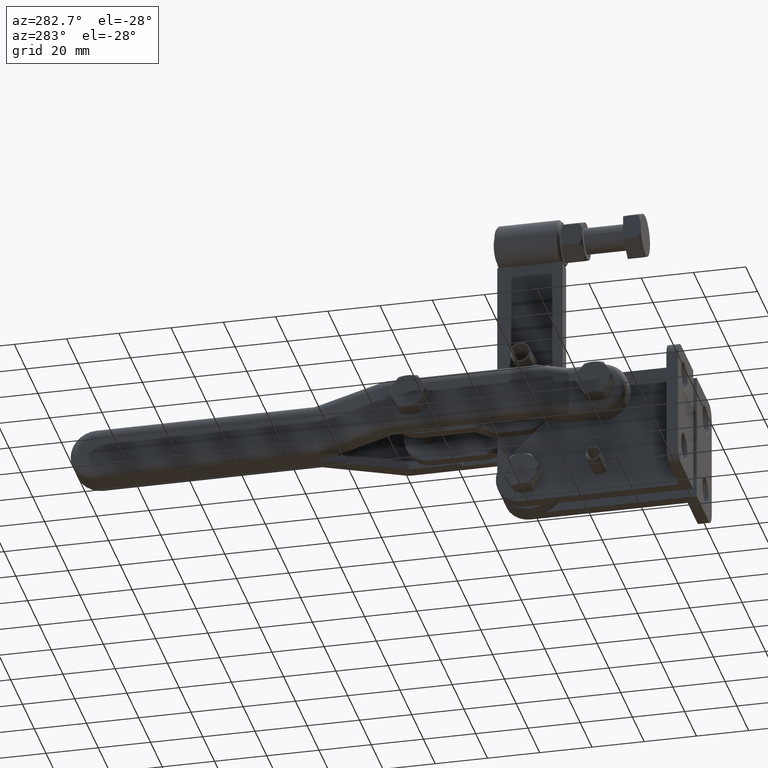
[diagram: clean part render]
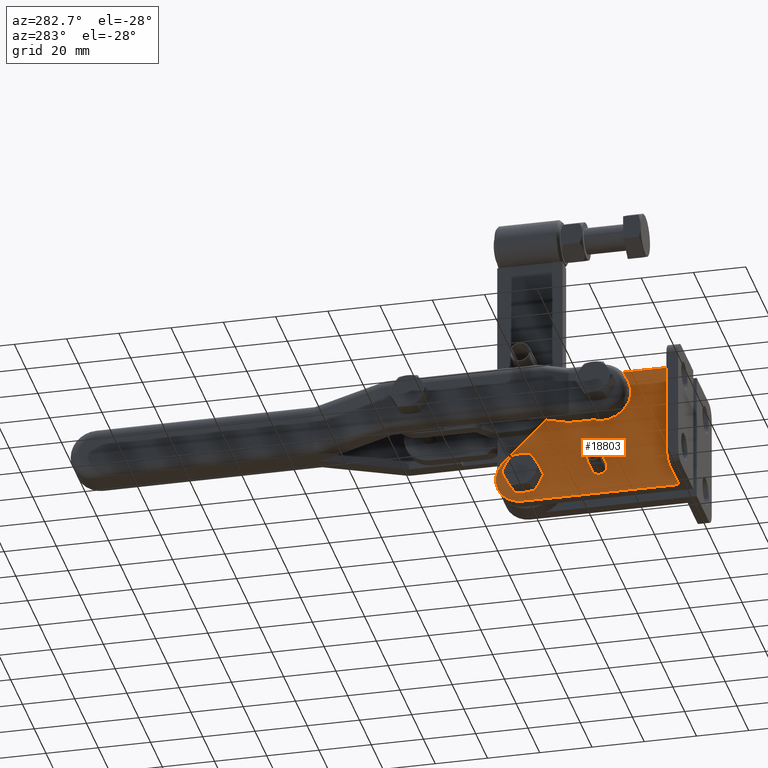
[diagram: same view with one face highlighted and labeled with its STEP entity id]
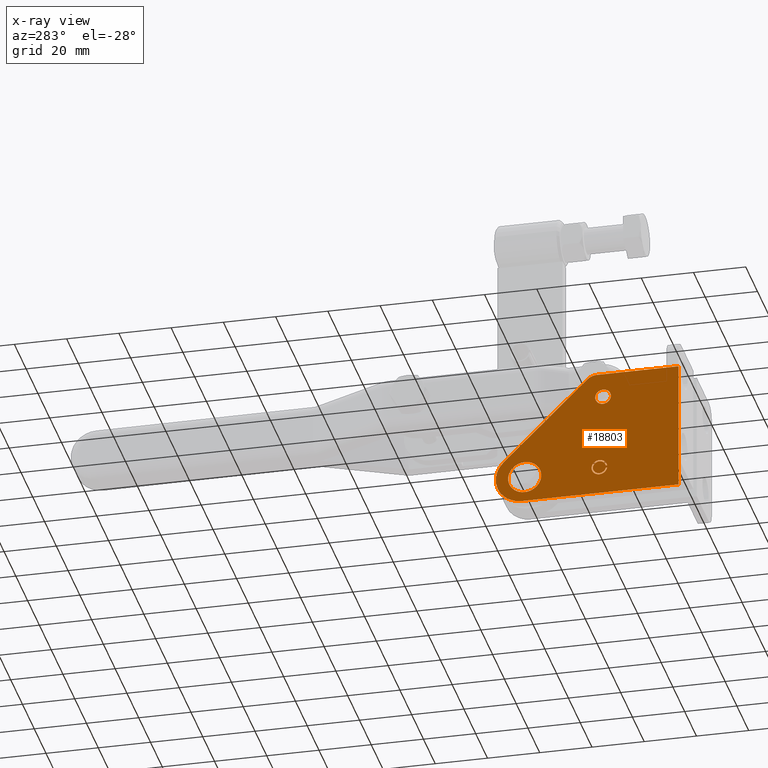
[diagram: x-ray of the same camera — body ghosted, the highlighted face saturated]
A machine part, auxiliary view. The second image highlights one B-rep face of the part: STEP entity #18803.
The next image is the same camera in x-ray: the body ghosted, the highlighted face saturated — about 0% of this face is hidden behind the body in this view.
In plain terms, the highlighted planar face has unit normal (-1, 0, -0).
Its self-contained STEP definition (entity closure, byte-faithful):
#27 = EDGE_CURVE ( 'NONE', #4426, #3462, #16315, .T. ) ;
#114 = DIRECTION ( 'NONE',  ( 0.0000000000000000000, 0.0000000000000000000, 1.000000000000000000 ) ) ;
#133 = VERTEX_POINT ( 'NONE', #11778 ) ;
#162 = DIRECTION ( 'NONE',  ( -1.000000000000000000, 0.0000000000000000000, 0.0000000000000000000 ) ) ;
#234 = ORIENTED_EDGE ( 'NONE', *, *, #1494, .F. ) ;
#336 = ORIENTED_EDGE ( 'NONE', *, *, #16577, .F. ) ;
#428 = CARTESIAN_POINT ( 'NONE',  ( -7.500000000000004400, 3.435959846941493900E-015, -38.63913390498800700 ) ) ;
#443 = AXIS2_PLACEMENT_3D ( 'NONE', #13259, #3208, #14996 ) ;
#555 = EDGE_CURVE ( 'NONE', #13127, #133, #1192, .T. ) ;
#689 = VERTEX_POINT ( 'NONE', #19087 ) ;
#886 = EDGE_LOOP ( 'NONE', ( #16013, #7325, #15750, #12714, #14782, #2946 ) ) ;
#953 = AXIS2_PLACEMENT_3D ( 'NONE', #20270, #10170, #114 ) ;
#1065 = EDGE_CURVE ( 'NONE', #1641, #3279, #7149, .T. ) ;
#1192 = CIRCLE ( 'NONE', #9022, 6.350000000000001400 ) ;
#1204 = VECTOR ( 'NONE', #12216, 1000.000000000000000 ) ;
#1254 = CARTESIAN_POINT ( 'NONE',  ( -7.500000000000015100, 63.50000000000000000, -40.00000000000000000 ) ) ;
#1297 = CIRCLE ( 'NONE', #20696, 4.999999999999999100 ) ;
#1311 = DIRECTION ( 'NONE',  ( 0.0000000000000000000, 0.0000000000000000000, -1.000000000000000000 ) ) ;
#1406 = DIRECTION ( 'NONE',  ( 0.0000000000000000000, 0.0000000000000000000, 1.000000000000000000 ) ) ;
#1494 = EDGE_CURVE ( 'NONE', #2815, #13127, #19274, .T. ) ;
#1627 = CARTESIAN_POINT ( 'NONE',  ( -7.500000000000002700, 71.59174510802633100, -32.85048950316250000 ) ) ;
#1641 = VERTEX_POINT ( 'NONE', #12681 ) ;
#1806 = CARTESIAN_POINT ( 'NONE',  ( -7.500000000000004400, 3.133521650926662100E-015, -39.63913390498800700 ) ) ;
#1848 = VECTOR ( 'NONE', #12132, 1000.000000000000000 ) ;
#1903 = CARTESIAN_POINT ( 'NONE',  ( -7.500000000000004400, 4.599999999999999600, -50.00000000000000700 ) ) ;
#2013 = CARTESIAN_POINT ( 'NONE',  ( -7.500000000000003600, 34.89999999999975700, -39.13913390498801400 ) ) ;
#2027 = EDGE_CURVE ( 'NONE', #5045, #1641, #5280, .T. ) ;
#2041 = DIRECTION ( 'NONE',  ( 0.0000000000000000000, 0.0000000000000000000, 1.000000000000000000 ) ) ;
#2107 = EDGE_CURVE ( 'NONE', #12809, #11472, #3178, .T. ) ;
#2113 = ORIENTED_EDGE ( 'NONE', *, *, #27, .F. ) ;
#2188 = LINE ( 'NONE', #3251, #2717 ) ;
#2226 = VERTEX_POINT ( 'NONE', #6256 ) ;
#2247 = CARTESIAN_POINT ( 'NONE',  ( -7.500000000000003600, 34.89999999999975700, -39.13913390498801400 ) ) ;
#2717 = VECTOR ( 'NONE', #18349, 1000.000000000000000 ) ;
#2815 = VERTEX_POINT ( 'NONE', #14872 ) ;
#2946 = ORIENTED_EDGE ( 'NONE', *, *, #2027, .T. ) ;
#2985 = VERTEX_POINT ( 'NONE', #5346 ) ;
#3134 = PLANE ( 'NONE',  #443 ) ;
#3178 = CIRCLE ( 'NONE', #10821, 3.000000000000000000 ) ;
#3208 = DIRECTION ( 'NONE',  ( -1.000000000000000000, 0.0000000000000000000, -1.605624300050768600E-017 ) ) ;
#3251 = CARTESIAN_POINT ( 'NONE',  ( -7.500000000000004400, 74.50000000000000000, -50.00000000000000700 ) ) ;
#3274 = EDGE_CURVE ( 'NONE', #4426, #12543, #7541, .T. ) ;
#3279 = VERTEX_POINT ( 'NONE', #11967 ) ;
#3304 = DIRECTION ( 'NONE',  ( 1.000000000000000000, -0.0000000000000000000, 1.605624300050768600E-017 ) ) ;
#3348 = AXIS2_PLACEMENT_3D ( 'NONE', #21455, #11367, #1311 ) ;
#3462 = VERTEX_POINT ( 'NONE', #16003 ) ;
#3499 = ORIENTED_EDGE ( 'NONE', *, *, #8879, .T. ) ;
#3709 = CARTESIAN_POINT ( 'NONE',  ( -7.500000000000005300, 35.96153216463069000, -5.000000000000006200 ) ) ;
#3821 = CIRCLE ( 'NONE', #14406, 3.000000000000002700 ) ;
#3945 = DIRECTION ( 'NONE',  ( 0.0000000000000000000, 0.0000000000000000000, 1.000000000000000000 ) ) ;
#4135 = DIRECTION ( 'NONE',  ( 0.0000000000000000000, 0.0000000000000000000, 1.000000000000000000 ) ) ;
#4340 = AXIS2_PLACEMENT_3D ( 'NONE', #13344, #3304, #15089 ) ;
#4426 = VERTEX_POINT ( 'NONE', #17809 ) ;
#4652 = CIRCLE ( 'NONE', #4340, 3.000000000000002700 ) ;
#5007 = VECTOR ( 'NONE', #15656, 1000.000000000000000 ) ;
#5045 = VERTEX_POINT ( 'NONE', #13435 ) ;
#5217 = DIRECTION ( 'NONE',  ( 0.0000000000000000000, 0.0000000000000000000, 1.000000000000000000 ) ) ;
#5280 = CIRCLE ( 'NONE', #19166, 2.500000000000002200 ) ;
#5346 = CARTESIAN_POINT ( 'NONE',  ( -7.500000000000004400, 64.60000000000000900, -50.00000000000000700 ) ) ;
#5350 = DIRECTION ( 'NONE',  ( 1.000000000000000000, 0.0000000000000000000, 1.605624300050768600E-017 ) ) ;
#5363 = CARTESIAN_POINT ( 'NONE',  ( -7.500000000000004400, 0.0000000000000000000, -50.00000000000000700 ) ) ;
#5387 = DIRECTION ( 'NONE',  ( -1.000000000000000000, 0.0000000000000000000, -1.605624300050768600E-017 ) ) ;
#5396 = DIRECTION ( 'NONE',  ( 0.0000000000000000000, 0.0000000000000000000, -1.000000000000000000 ) ) ;
#5665 = AXIS2_PLACEMENT_3D ( 'NONE', #2247, #14027, #3945 ) ;
#5739 = VECTOR ( 'NONE', #9906, 1000.000000000000000 ) ;
#5809 = CARTESIAN_POINT ( 'NONE',  ( -7.500000000000006200, 43.56988738965519300, -5.446978912207396400 ) ) ;
#5842 = CARTESIAN_POINT ( 'NONE',  ( -7.500000000000004400, 68.99926131403117300, -43.17499999999999700 ) ) ;
#5996 = DIRECTION ( 'NONE',  ( -1.000000000000000000, 0.0000000000000000000, 0.0000000000000000000 ) ) ;
#6051 = EDGE_CURVE ( 'NONE', #11472, #12809, #12087, .T. ) ;
#6256 = CARTESIAN_POINT ( 'NONE',  ( -7.500000000000005300, 74.50000000000000000, -38.58932640203338600 ) ) ;
#6508 = ORIENTED_EDGE ( 'NONE', *, *, #10453, .F. ) ;
#6589 = DIRECTION ( 'NONE',  ( -1.000000000000000000, 0.0000000000000000000, 0.0000000000000000000 ) ) ;
#6810 = LINE ( 'NONE', #5363, #1848 ) ;
#7149 = LINE ( 'NONE', #1806, #16141 ) ;
#7325 = ORIENTED_EDGE ( 'NONE', *, *, #12246, .T. ) ;
#7485 = DIRECTION ( 'NONE',  ( -1.122611584520817600E-017, -0.7149510496837513400, 0.6991745108026337100 ) ) ;
#7541 = CIRCLE ( 'NONE', #18775, 6.350000000000001400 ) ;
#7623 = EDGE_CURVE ( 'NONE', #133, #12543, #11553, .T. ) ;
#8022 = VERTEX_POINT ( 'NONE', #17560 ) ;
#8155 = EDGE_CURVE ( 'NONE', #12314, #8605, #14721, .T. ) ;
#8189 = CARTESIAN_POINT ( 'NONE',  ( -7.500000000000004400, 4.599999999999999600, -50.00000000000000700 ) ) ;
#8451 = DIRECTION ( 'NONE',  ( 0.0000000000000000000, 0.0000000000000000000, 1.000000000000000000 ) ) ;
#8579 = CARTESIAN_POINT ( 'NONE',  ( -7.500000000000015100, 63.50000000000000000, -40.00000000000000000 ) ) ;
#8605 = VERTEX_POINT ( 'NONE', #18058 ) ;
#8694 = DIRECTION ( 'NONE',  ( 1.000000000000000000, 0.0000000000000000000, 0.0000000000000000000 ) ) ;
#8817 = CARTESIAN_POINT ( 'NONE',  ( -7.500000000000005300, 0.0000000000000000000, -4.336808689942017700E-015 ) ) ;
#8879 = EDGE_CURVE ( 'NONE', #8605, #8022, #14635, .T. ) ;
#8953 = FACE_BOUND ( 'NONE', #886, .T. ) ;
#9004 = EDGE_CURVE ( 'NONE', #11101, #11240, #10917, .T. ) ;
#9022 = AXIS2_PLACEMENT_3D ( 'NONE', #15901, #17587, #19746 ) ;
#9047 = EDGE_CURVE ( 'NONE', #20865, #12747, #3821, .T. ) ;
#9289 = CARTESIAN_POINT ( 'NONE',  ( -7.500000000000003600, 33.49999999999995000, -12.49999999999995600 ) ) ;
#9403 = CARTESIAN_POINT ( 'NONE',  ( -7.500000000000003600, 34.89999999999975700, -39.13913390498801400 ) ) ;
#9442 = ORIENTED_EDGE ( 'NONE', *, *, #9004, .F. ) ;
#9481 = EDGE_CURVE ( 'NONE', #2226, #11101, #18328, .T. ) ;
#9499 = FACE_OUTER_BOUND ( 'NONE', #15467, .T. ) ;
#9875 = ORIENTED_EDGE ( 'NONE', *, *, #6051, .F. ) ;
#9906 = DIRECTION ( 'NONE',  ( -1.605624300050768600E-017, 0.0000000000000000000, 1.000000000000000000 ) ) ;
#9949 = CARTESIAN_POINT ( 'NONE',  ( -7.500000000000003600, 33.49999999999995000, -6.499999999999954700 ) ) ;
#10170 = DIRECTION ( 'NONE',  ( -1.000000000000000000, 0.0000000000000000000, -1.605624300050768600E-017 ) ) ;
#10264 = CARTESIAN_POINT ( 'NONE',  ( -7.500000000000003600, 39.45740471864385800, -1.425244751581247000 ) ) ;
#10305 = AXIS2_PLACEMENT_3D ( 'NONE', #8579, #162, #5217 ) ;
#10369 = ORIENTED_EDGE ( 'NONE', *, *, #3274, .T. ) ;
#10396 = VECTOR ( 'NONE', #7485, 1000.000000000000000 ) ;
#10453 = EDGE_CURVE ( 'NONE', #21702, #2226, #2188, .T. ) ;
#10516 = CARTESIAN_POINT ( 'NONE',  ( -7.500000000000005300, 74.50000000000000000, -41.41067359796662800 ) ) ;
#10821 = AXIS2_PLACEMENT_3D ( 'NONE', #19684, #18580, #8451 ) ;
#10917 = LINE ( 'NONE', #5809, #10396 ) ;
#11101 = VERTEX_POINT ( 'NONE', #1627 ) ;
#11106 = DIRECTION ( 'NONE',  ( 0.0000000000000000000, 0.0000000000000000000, 1.000000000000000000 ) ) ;
#11150 = ORIENTED_EDGE ( 'NONE', *, *, #11833, .F. ) ;
#11240 = VERTEX_POINT ( 'NONE', #10264 ) ;
#11329 = EDGE_CURVE ( 'NONE', #12747, #689, #18472, .T. ) ;
#11367 = DIRECTION ( 'NONE',  ( 1.000000000000000000, 0.0000000000000000000, 1.605624300050768600E-017 ) ) ;
#11379 = ORIENTED_EDGE ( 'NONE', *, *, #13557, .F. ) ;
#11464 = DIRECTION ( 'NONE',  ( -1.000000000000000000, 0.0000000000000000000, 0.0000000000000000000 ) ) ;
#11472 = VERTEX_POINT ( 'NONE', #9289 ) ;
#11553 = CIRCLE ( 'NONE', #15511, 6.350000000000001400 ) ;
#11778 = CARTESIAN_POINT ( 'NONE',  ( -7.500000000000015100, 68.99926131403118700, -36.82499999999999600 ) ) ;
#11833 = EDGE_CURVE ( 'NONE', #11240, #8022, #1297, .T. ) ;
#11871 = DIRECTION ( 'NONE',  ( -4.856021167849309400E-033, -1.000000000000000000, 3.024381960148314600E-016 ) ) ;
#11967 = CARTESIAN_POINT ( 'NONE',  ( -7.500000000000004400, 31.94196010844994800, -39.63913390498801400 ) ) ;
#12087 = CIRCLE ( 'NONE', #953, 3.000000000000000000 ) ;
#12102 = ORIENTED_EDGE ( 'NONE', *, *, #7623, .F. ) ;
#12132 = DIRECTION ( 'NONE',  ( 0.0000000000000000000, 1.000000000000000000, 0.0000000000000000000 ) ) ;
#12216 = DIRECTION ( 'NONE',  ( 0.0000000000000000000, 1.000000000000000000, 0.0000000000000000000 ) ) ;
#12246 = EDGE_CURVE ( 'NONE', #3279, #20865, #4652, .T. ) ;
#12314 = VERTEX_POINT ( 'NONE', #1903 ) ;
#12543 = VERTEX_POINT ( 'NONE', #5842 ) ;
#12681 = CARTESIAN_POINT ( 'NONE',  ( -7.500000000000003600, 32.45051025721657800, -39.63913390498801400 ) ) ;
#12714 = ORIENTED_EDGE ( 'NONE', *, *, #11329, .T. ) ;
#12747 = VERTEX_POINT ( 'NONE', #19904 ) ;
#12809 = VERTEX_POINT ( 'NONE', #9949 ) ;
#13120 = AXIS2_PLACEMENT_3D ( 'NONE', #15446, #5350, #17135 ) ;
#13127 = VERTEX_POINT ( 'NONE', #20917 ) ;
#13259 = CARTESIAN_POINT ( 'NONE',  ( -7.500000000000004400, 0.0000000000000000000, -50.00000000000000700 ) ) ;
#13344 = CARTESIAN_POINT ( 'NONE',  ( -7.500000000000003600, 34.89999999999975700, -39.13913390498801400 ) ) ;
#13435 = CARTESIAN_POINT ( 'NONE',  ( -7.500000000000003600, 37.39999999999975700, -39.13913390498801400 ) ) ;
#13445 = FACE_BOUND ( 'NONE', #19974, .T. ) ;
#13557 = EDGE_CURVE ( 'NONE', #12314, #2985, #6810, .T. ) ;
#13922 = CIRCLE ( 'NONE', #3348, 9.999999999999994700 ) ;
#14027 = DIRECTION ( 'NONE',  ( -1.000000000000000000, 0.0000000000000000000, -1.605624300050768600E-017 ) ) ;
#14270 = EDGE_CURVE ( 'NONE', #689, #5045, #19437, .T. ) ;
#14406 = AXIS2_PLACEMENT_3D ( 'NONE', #9403, #21196, #11106 ) ;
#14635 = LINE ( 'NONE', #8817, #1204 ) ;
#14653 = EDGE_LOOP ( 'NONE', ( #15346, #234, #17349, #2113, #10369, #12102 ) ) ;
#14721 = LINE ( 'NONE', #8189, #5739 ) ;
#14782 = ORIENTED_EDGE ( 'NONE', *, *, #14270, .T. ) ;
#14814 = CIRCLE ( 'NONE', #18202, 6.350000000000001400 ) ;
#14872 = CARTESIAN_POINT ( 'NONE',  ( -7.500000000000004400, 58.00073868596883400, -36.82500000000000300 ) ) ;
#14996 = DIRECTION ( 'NONE',  ( 1.605624300050768600E-017, 0.0000000000000000000, -1.000000000000000000 ) ) ;
#15089 = DIRECTION ( 'NONE',  ( 0.0000000000000000000, 0.0000000000000000000, 1.000000000000000000 ) ) ;
#15346 = ORIENTED_EDGE ( 'NONE', *, *, #555, .F. ) ;
#15446 = CARTESIAN_POINT ( 'NONE',  ( -7.500000000000004400, 64.60000000000000900, -40.00000000000000700 ) ) ;
#15467 = EDGE_LOOP ( 'NONE', ( #11379, #18628, #3499, #11150, #9442, #20679, #6508, #336 ) ) ;
#15484 = DIRECTION ( 'NONE',  ( 1.000000000000000000, 0.0000000000000000000, 1.605624300050768600E-017 ) ) ;
#15511 = AXIS2_PLACEMENT_3D ( 'NONE', #21548, #11464, #1406 ) ;
#15656 = DIRECTION ( 'NONE',  ( 4.856021167849309400E-033, 1.000000000000000000, -3.024381960148314600E-016 ) ) ;
#15750 = ORIENTED_EDGE ( 'NONE', *, *, #9047, .T. ) ;
#15901 = CARTESIAN_POINT ( 'NONE',  ( -7.500000000000015100, 63.50000000000000000, -40.00000000000000000 ) ) ;
#16003 = CARTESIAN_POINT ( 'NONE',  ( -7.500000000000004400, 58.00073868596883400, -43.17499999999999700 ) ) ;
#16013 = ORIENTED_EDGE ( 'NONE', *, *, #1065, .T. ) ;
#16091 = CARTESIAN_POINT ( 'NONE',  ( -7.500000000000015100, 63.50000000000000000, -40.00000000000000000 ) ) ;
#16141 = VECTOR ( 'NONE', #11871, 1000.000000000000000 ) ;
#16315 = CIRCLE ( 'NONE', #10305, 6.350000000000001400 ) ;
#16577 = EDGE_CURVE ( 'NONE', #2985, #21702, #13922, .T. ) ;
#17135 = DIRECTION ( 'NONE',  ( 0.0000000000000000000, 0.0000000000000000000, -1.000000000000000000 ) ) ;
#17349 = ORIENTED_EDGE ( 'NONE', *, *, #18638, .F. ) ;
#17432 = AXIS2_PLACEMENT_3D ( 'NONE', #1254, #6589, #2041 ) ;
#17560 = CARTESIAN_POINT ( 'NONE',  ( -7.500000000000003600, 35.96153216463069000, -4.336808689942017700E-015 ) ) ;
#17587 = DIRECTION ( 'NONE',  ( -1.000000000000000000, 0.0000000000000000000, 0.0000000000000000000 ) ) ;
#17777 = DIRECTION ( 'NONE',  ( 0.0000000000000000000, 0.0000000000000000000, 1.000000000000000000 ) ) ;
#17809 = CARTESIAN_POINT ( 'NONE',  ( -7.500000000000004400, 63.50000000000000000, -46.34999999999998700 ) ) ;
#18058 = CARTESIAN_POINT ( 'NONE',  ( -7.500000000000005300, 4.599999999999999600, -4.336808689942017700E-015 ) ) ;
#18202 = AXIS2_PLACEMENT_3D ( 'NONE', #16091, #5996, #17777 ) ;
#18328 = CIRCLE ( 'NONE', #13120, 9.999999999999994700 ) ;
#18349 = DIRECTION ( 'NONE',  ( -1.605624300050768600E-017, 0.0000000000000000000, 1.000000000000000000 ) ) ;
#18472 = LINE ( 'NONE', #428, #5007 ) ;
#18497 = FACE_BOUND ( 'NONE', #14653, .T. ) ;
#18580 = DIRECTION ( 'NONE',  ( -1.000000000000000000, 0.0000000000000000000, -1.605624300050768600E-017 ) ) ;
#18628 = ORIENTED_EDGE ( 'NONE', *, *, #8155, .T. ) ;
#18638 = EDGE_CURVE ( 'NONE', #3462, #2815, #14814, .T. ) ;
#18775 = AXIS2_PLACEMENT_3D ( 'NONE', #20503, #8694, #18821 ) ;
#18803 = ADVANCED_FACE ( 'NONE', ( #13445, #18497, #9499, #8953 ), #3134, .T. ) ;
#18821 = DIRECTION ( 'NONE',  ( 0.0000000000000000000, 0.0000000000000000000, -1.000000000000000000 ) ) ;
#19087 = CARTESIAN_POINT ( 'NONE',  ( -7.500000000000003600, 32.45051025721657800, -38.63913390498801400 ) ) ;
#19166 = AXIS2_PLACEMENT_3D ( 'NONE', #2013, #5387, #4135 ) ;
#19176 = CARTESIAN_POINT ( 'NONE',  ( -7.500000000000003600, 37.89999999999975700, -39.13913390498801400 ) ) ;
#19274 = CIRCLE ( 'NONE', #17432, 6.350000000000001400 ) ;
#19437 = CIRCLE ( 'NONE', #5665, 2.500000000000002200 ) ;
#19684 = CARTESIAN_POINT ( 'NONE',  ( -7.500000000000003600, 33.49999999999995000, -9.499999999999953800 ) ) ;
#19746 = DIRECTION ( 'NONE',  ( 0.0000000000000000000, 0.0000000000000000000, 1.000000000000000000 ) ) ;
#19904 = CARTESIAN_POINT ( 'NONE',  ( -7.500000000000003600, 31.94196010844994800, -38.63913390498801400 ) ) ;
#19974 = EDGE_LOOP ( 'NONE', ( #9875, #20232 ) ) ;
#20232 = ORIENTED_EDGE ( 'NONE', *, *, #2107, .F. ) ;
#20270 = CARTESIAN_POINT ( 'NONE',  ( -7.500000000000003600, 33.49999999999995000, -9.499999999999953800 ) ) ;
#20503 = CARTESIAN_POINT ( 'NONE',  ( -7.500000000000015100, 63.50000000000000000, -40.00000000000000000 ) ) ;
#20679 = ORIENTED_EDGE ( 'NONE', *, *, #9481, .F. ) ;
#20696 = AXIS2_PLACEMENT_3D ( 'NONE', #3709, #15484, #5396 ) ;
#20865 = VERTEX_POINT ( 'NONE', #19176 ) ;
#20917 = CARTESIAN_POINT ( 'NONE',  ( -7.500000000000004400, 63.50000000000000000, -33.64999999999999900 ) ) ;
#21196 = DIRECTION ( 'NONE',  ( 1.000000000000000000, -0.0000000000000000000, 1.605624300050768600E-017 ) ) ;
#21455 = CARTESIAN_POINT ( 'NONE',  ( -7.500000000000004400, 64.60000000000000900, -40.00000000000000700 ) ) ;
#21548 = CARTESIAN_POINT ( 'NONE',  ( -7.500000000000015100, 63.50000000000000000, -40.00000000000000000 ) ) ;
#21702 = VERTEX_POINT ( 'NONE', #10516 ) ;